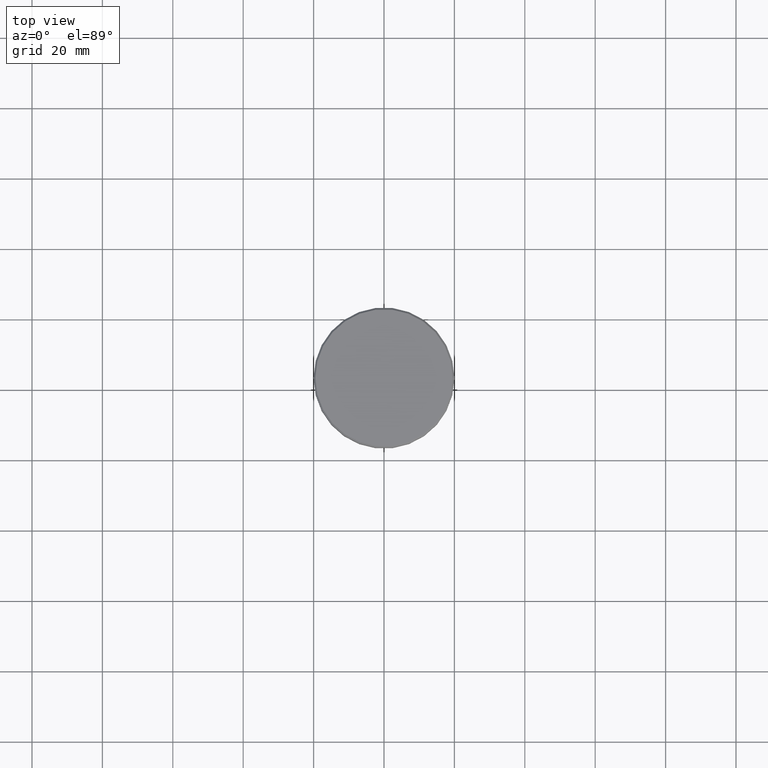
[diagram: clean part render]
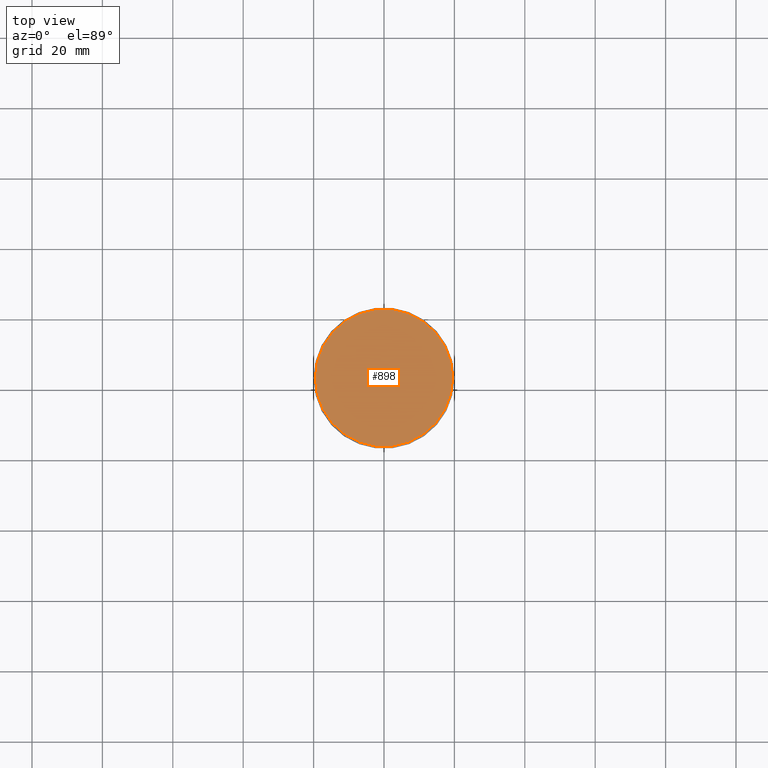
[diagram: same view with one face highlighted and labeled with its STEP entity id]
A machine part, top view. The second image highlights one B-rep face of the part: STEP entity #898.
In plain terms, the highlighted planar face has unit normal (0, -0, 1).
Its self-contained STEP definition (entity closure, byte-faithful):
#52 = DIRECTION ( 'NONE',  ( -0.000000000000000000, -0.000000000000000000, 1.000000000000000000 ) ) ;
#67 = DIRECTION ( 'NONE',  ( 1.000000000000000000, 0.000000000000000000, 0.000000000000000000 ) ) ;
#99 = CARTESIAN_POINT ( 'NONE',  ( 19.49999999999998934, 2.418677428316021937E-15, 0.000000000000000000 ) ) ;
#121 = AXIS2_PLACEMENT_3D ( 'NONE', #513, #883, #67 ) ;
#167 = CARTESIAN_POINT ( 'NONE',  ( 0.000000000000000000, 0.000000000000000000, 0.000000000000000000 ) ) ;
#203 = ORIENTED_EDGE ( 'NONE', *, *, #724, .T. ) ;
#247 = EDGE_LOOP ( 'NONE', ( #203, #1167 ) ) ;
#353 = FACE_OUTER_BOUND ( 'NONE', #247, .T. ) ;
#418 = VERTEX_POINT ( 'NONE', #899 ) ;
#493 = VERTEX_POINT ( 'NONE', #99 ) ;
#513 = CARTESIAN_POINT ( 'NONE',  ( 0.000000000000000000, 0.000000000000000000, 0.000000000000000000 ) ) ;
#609 = CARTESIAN_POINT ( 'NONE',  ( 0.000000000000000000, 0.000000000000000000, 0.000000000000000000 ) ) ;
#701 = AXIS2_PLACEMENT_3D ( 'NONE', #167, #1004, #812 ) ;
#713 = PLANE ( 'NONE',  #701 ) ;
#724 = EDGE_CURVE ( 'NONE', #418, #493, #1061, .T. ) ;
#812 = DIRECTION ( 'NONE',  ( 1.000000000000000000, 0.000000000000000000, 0.000000000000000000 ) ) ;
#824 = EDGE_CURVE ( 'NONE', #493, #418, #982, .T. ) ;
#883 = DIRECTION ( 'NONE',  ( -0.000000000000000000, -0.000000000000000000, 1.000000000000000000 ) ) ;
#898 = ADVANCED_FACE ( 'NONE', ( #353 ), #713, .T. ) ;
#899 = CARTESIAN_POINT ( 'NONE',  ( -19.49999999999998934, 0.000000000000000000, 0.000000000000000000 ) ) ;
#982 = CIRCLE ( 'NONE', #121, 19.49999999999998934 ) ;
#1004 = DIRECTION ( 'NONE',  ( 0.000000000000000000, -0.000000000000000000, 1.000000000000000000 ) ) ;
#1053 = DIRECTION ( 'NONE',  ( 1.000000000000000000, 0.000000000000000000, 0.000000000000000000 ) ) ;
#1061 = CIRCLE ( 'NONE', #1153, 19.49999999999998934 ) ;
#1153 = AXIS2_PLACEMENT_3D ( 'NONE', #609, #52, #1053 ) ;
#1167 = ORIENTED_EDGE ( 'NONE', *, *, #824, .T. ) ;